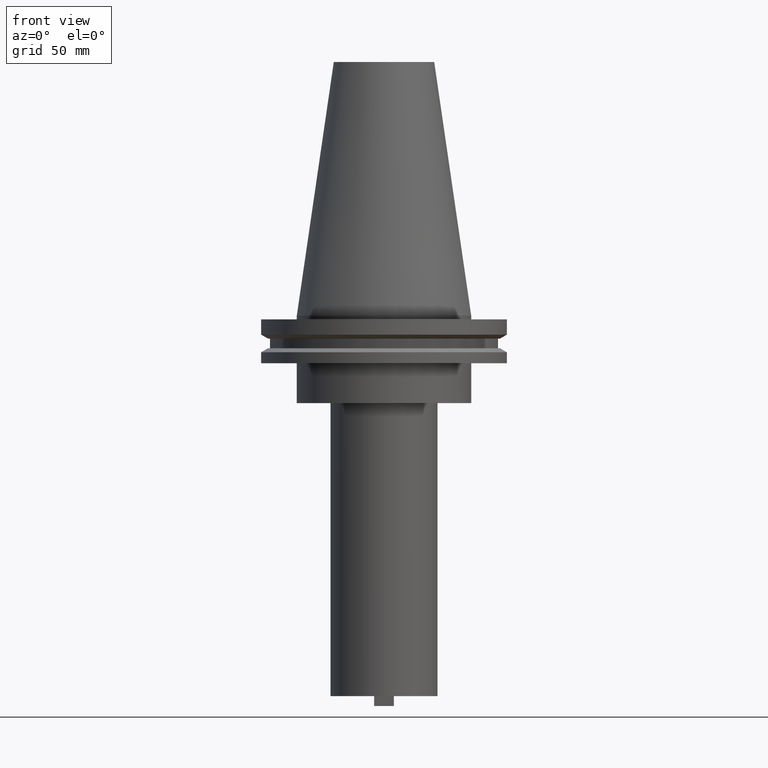
[diagram: clean part render]
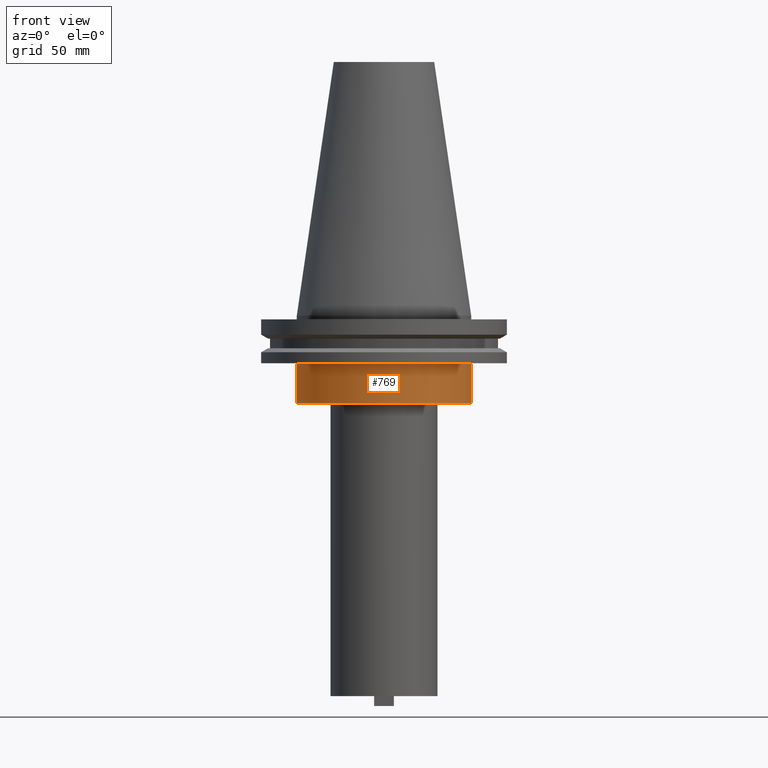
[diagram: same view with one face highlighted and labeled with its STEP entity id]
A machine part, front view. The second image highlights one B-rep face of the part: STEP entity #769.
In plain terms, the highlighted cylindrical surface (partial cylindrical patch) has radius 34.925 mm, axis along (-0, -0, 1).
Its self-contained STEP definition (entity closure, byte-faithful):
#33 = CARTESIAN_POINT ( 'NONE',  ( 0.000000000000000000, 0.000000000000000000, 101.5999999999999943 ) ) ;
#40 = VERTEX_POINT ( 'NONE', #289 ) ;
#67 = VECTOR ( 'NONE', #893, 1000.000000000000000 ) ;
#109 = LINE ( 'NONE', #861, #712 ) ;
#113 = DIRECTION ( 'NONE',  ( -0.000000000000000000, -0.000000000000000000, 1.000000000000000000 ) ) ;
#153 = CARTESIAN_POINT ( 'NONE',  ( 0.000000000000000000, 0.000000000000000000, -19.04999999999999716 ) ) ;
#162 = EDGE_LOOP ( 'NONE', ( #655, #573, #809, #703 ) ) ;
#189 = VERTEX_POINT ( 'NONE', #792 ) ;
#190 = DIRECTION ( 'NONE',  ( -0.000000000000000000, -0.000000000000000000, 1.000000000000000000 ) ) ;
#203 = VERTEX_POINT ( 'NONE', #226 ) ;
#226 = CARTESIAN_POINT ( 'NONE',  ( -34.92499999999999716, 4.277078946022130887E-15, -35.04999999999999716 ) ) ;
#235 = DIRECTION ( 'NONE',  ( -0.000000000000000000, -0.000000000000000000, 1.000000000000000000 ) ) ;
#241 = AXIS2_PLACEMENT_3D ( 'NONE', #1067, #390, #789 ) ;
#268 = CYLINDRICAL_SURFACE ( 'NONE', #877, 34.92499999999999716 ) ;
#285 = EDGE_CURVE ( 'NONE', #189, #1008, #581, .T. ) ;
#289 = CARTESIAN_POINT ( 'NONE',  ( 34.92499999999999716, 0.000000000000000000, -35.04999999999999716 ) ) ;
#390 = DIRECTION ( 'NONE',  ( -0.000000000000000000, -0.000000000000000000, 1.000000000000000000 ) ) ;
#430 = CIRCLE ( 'NONE', #241, 34.92499999999999716 ) ;
#493 = AXIS2_PLACEMENT_3D ( 'NONE', #153, #235, #580 ) ;
#573 = ORIENTED_EDGE ( 'NONE', *, *, #870, .T. ) ;
#580 = DIRECTION ( 'NONE',  ( 1.000000000000000000, 0.000000000000000000, 0.000000000000000000 ) ) ;
#581 = CIRCLE ( 'NONE', #493, 34.92499999999999716 ) ;
#604 = FACE_OUTER_BOUND ( 'NONE', #162, .T. ) ;
#641 = LINE ( 'NONE', #986, #67 ) ;
#655 = ORIENTED_EDGE ( 'NONE', *, *, #850, .F. ) ;
#703 = ORIENTED_EDGE ( 'NONE', *, *, #285, .F. ) ;
#712 = VECTOR ( 'NONE', #113, 1000.000000000000000 ) ;
#769 = ADVANCED_FACE ( 'NONE', ( #604 ), #268, .T. ) ;
#786 = EDGE_CURVE ( 'NONE', #40, #1008, #109, .T. ) ;
#789 = DIRECTION ( 'NONE',  ( 1.000000000000000000, 0.000000000000000000, 0.000000000000000000 ) ) ;
#792 = CARTESIAN_POINT ( 'NONE',  ( -34.92499999999999716, 4.277078946022130887E-15, -19.04999999999999716 ) ) ;
#809 = ORIENTED_EDGE ( 'NONE', *, *, #786, .T. ) ;
#828 = CARTESIAN_POINT ( 'NONE',  ( 34.92499999999999716, 0.000000000000000000, -19.04999999999999716 ) ) ;
#850 = EDGE_CURVE ( 'NONE', #203, #189, #641, .T. ) ;
#861 = CARTESIAN_POINT ( 'NONE',  ( 34.92499999999999716, 0.000000000000000000, 101.5999999999999943 ) ) ;
#870 = EDGE_CURVE ( 'NONE', #203, #40, #430, .T. ) ;
#877 = AXIS2_PLACEMENT_3D ( 'NONE', #33, #190, #968 ) ;
#893 = DIRECTION ( 'NONE',  ( -0.000000000000000000, -0.000000000000000000, 1.000000000000000000 ) ) ;
#968 = DIRECTION ( 'NONE',  ( 1.000000000000000000, 0.000000000000000000, 0.000000000000000000 ) ) ;
#986 = CARTESIAN_POINT ( 'NONE',  ( -34.92499999999999716, 4.277078946022130887E-15, 101.5999999999999943 ) ) ;
#1008 = VERTEX_POINT ( 'NONE', #828 ) ;
#1067 = CARTESIAN_POINT ( 'NONE',  ( 0.000000000000000000, 0.000000000000000000, -35.04999999999999716 ) ) ;